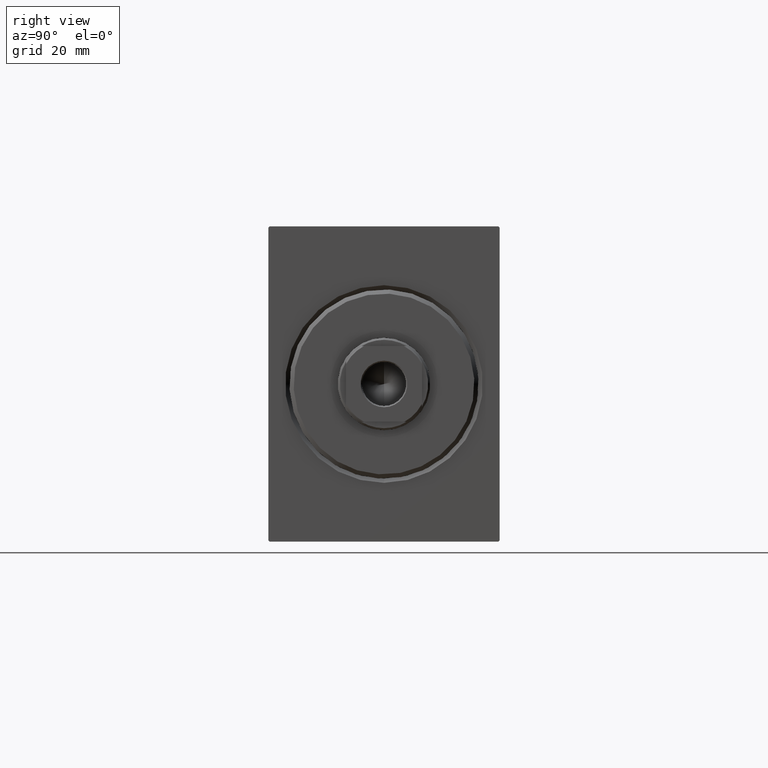
[diagram: clean part render]
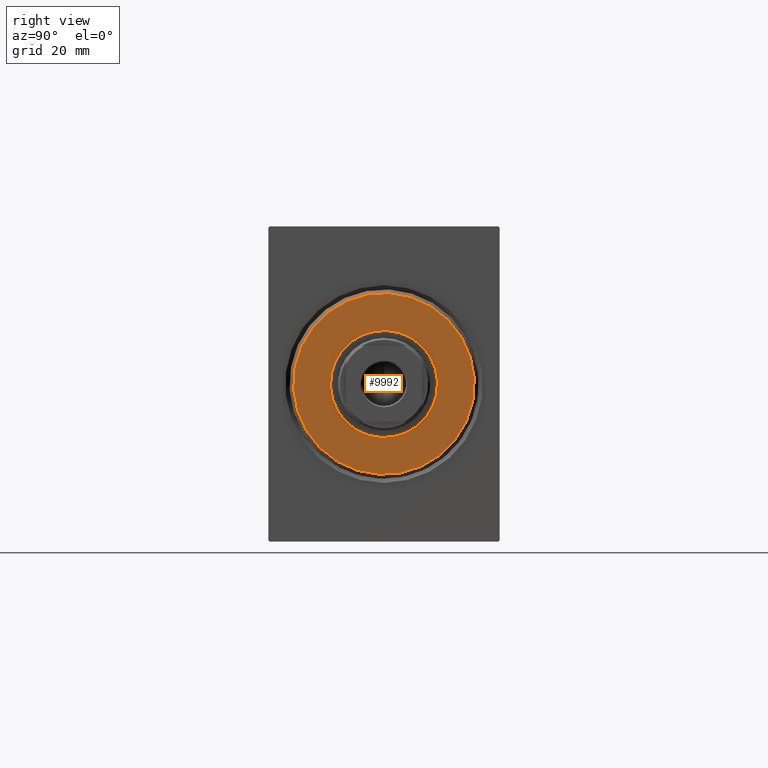
[diagram: same view with one face highlighted and labeled with its STEP entity id]
A machine part, right view. The second image highlights one B-rep face of the part: STEP entity #9992.
In plain terms, the highlighted planar face has unit normal (1, -0, -0).
Its self-contained STEP definition (entity closure, byte-faithful):
#671 = AXIS2_PLACEMENT_3D ( 'NONE', #29407, #6175, #42905 ) ;
#2681 = VERTEX_POINT ( 'NONE', #34506 ) ;
#3860 = AXIS2_PLACEMENT_3D ( 'NONE', #6941, #41445, #41222 ) ;
#6175 = DIRECTION ( 'NONE',  ( 1.000000000000000000, -0.000000000000000000, 0.000000000000000000 ) ) ;
#6655 = VERTEX_POINT ( 'NONE', #30912 ) ;
#6941 = CARTESIAN_POINT ( 'NONE',  ( 3.000000000000000000, 0.000000000000000000, 0.000000000000000000 ) ) ;
#7336 = EDGE_CURVE ( 'NONE', #2681, #40159, #29971, .T. ) ;
#9583 = ORIENTED_EDGE ( 'NONE', *, *, #35787, .F. ) ;
#9606 = AXIS2_PLACEMENT_3D ( 'NONE', #24962, #32054, #28729 ) ;
#9992 = ADVANCED_FACE ( 'NONE', ( #14448, #30618 ), #30403, .T. ) ;
#10326 = CIRCLE ( 'NONE', #9606, 21.50000000000000355 ) ;
#10651 = DIRECTION ( 'NONE',  ( 0.000000000000000000, 0.000000000000000000, -1.000000000000000000 ) ) ;
#11778 = EDGE_LOOP ( 'NONE', ( #34096, #42630 ) ) ;
#13255 = VERTEX_POINT ( 'NONE', #27570 ) ;
#14217 = EDGE_CURVE ( 'NONE', #13255, #6655, #10326, .T. ) ;
#14448 = FACE_OUTER_BOUND ( 'NONE', #11778, .T. ) ;
#14687 = ORIENTED_EDGE ( 'NONE', *, *, #7336, .F. ) ;
#17993 = EDGE_LOOP ( 'NONE', ( #9583, #14687 ) ) ;
#24962 = CARTESIAN_POINT ( 'NONE',  ( 3.000000000000000000, 0.000000000000000000, 0.000000000000000000 ) ) ;
#25809 = DIRECTION ( 'NONE',  ( 0.000000000000000000, 0.000000000000000000, -1.000000000000000000 ) ) ;
#26877 = AXIS2_PLACEMENT_3D ( 'NONE', #36005, #35136, #25809 ) ;
#27570 = CARTESIAN_POINT ( 'NONE',  ( 3.000000000000000000, 2.694222958124177598E-15, -21.50000000000000355 ) ) ;
#28729 = DIRECTION ( 'NONE',  ( 0.000000000000000000, 0.000000000000000000, -1.000000000000000000 ) ) ;
#29407 = CARTESIAN_POINT ( 'NONE',  ( 3.000000000000000000, 0.000000000000000000, 0.000000000000000000 ) ) ;
#29971 = CIRCLE ( 'NONE', #41267, 12.75000000000000000 ) ;
#30403 = PLANE ( 'NONE',  #3860 ) ;
#30618 = FACE_BOUND ( 'NONE', #17993, .T. ) ;
#30912 = CARTESIAN_POINT ( 'NONE',  ( 3.000000000000000000, 0.000000000000000000, 21.50000000000000355 ) ) ;
#32054 = DIRECTION ( 'NONE',  ( 1.000000000000000000, -0.000000000000000000, 0.000000000000000000 ) ) ;
#34003 = EDGE_CURVE ( 'NONE', #6655, #13255, #39542, .T. ) ;
#34096 = ORIENTED_EDGE ( 'NONE', *, *, #34003, .T. ) ;
#34341 = DIRECTION ( 'NONE',  ( 1.000000000000000000, 0.000000000000000000, 0.000000000000000000 ) ) ;
#34506 = CARTESIAN_POINT ( 'NONE',  ( 3.000000000000000000, 1.561424668912875111E-15, 12.75000000000000000 ) ) ;
#35136 = DIRECTION ( 'NONE',  ( 1.000000000000000000, 0.000000000000000000, 0.000000000000000000 ) ) ;
#35787 = EDGE_CURVE ( 'NONE', #40159, #2681, #43105, .T. ) ;
#36005 = CARTESIAN_POINT ( 'NONE',  ( 3.000000000000000000, 0.000000000000000000, 0.000000000000000000 ) ) ;
#39542 = CIRCLE ( 'NONE', #671, 21.50000000000000355 ) ;
#40133 = CARTESIAN_POINT ( 'NONE',  ( 3.000000000000000000, 0.000000000000000000, -12.75000000000000000 ) ) ;
#40159 = VERTEX_POINT ( 'NONE', #40133 ) ;
#40976 = CARTESIAN_POINT ( 'NONE',  ( 3.000000000000000000, 0.000000000000000000, 0.000000000000000000 ) ) ;
#41222 = DIRECTION ( 'NONE',  ( 0.000000000000000000, 0.000000000000000000, -1.000000000000000000 ) ) ;
#41267 = AXIS2_PLACEMENT_3D ( 'NONE', #40976, #34341, #10651 ) ;
#41445 = DIRECTION ( 'NONE',  ( 1.000000000000000000, -0.000000000000000000, 0.000000000000000000 ) ) ;
#42630 = ORIENTED_EDGE ( 'NONE', *, *, #14217, .T. ) ;
#42905 = DIRECTION ( 'NONE',  ( 0.000000000000000000, 0.000000000000000000, -1.000000000000000000 ) ) ;
#43105 = CIRCLE ( 'NONE', #26877, 12.75000000000000000 ) ;